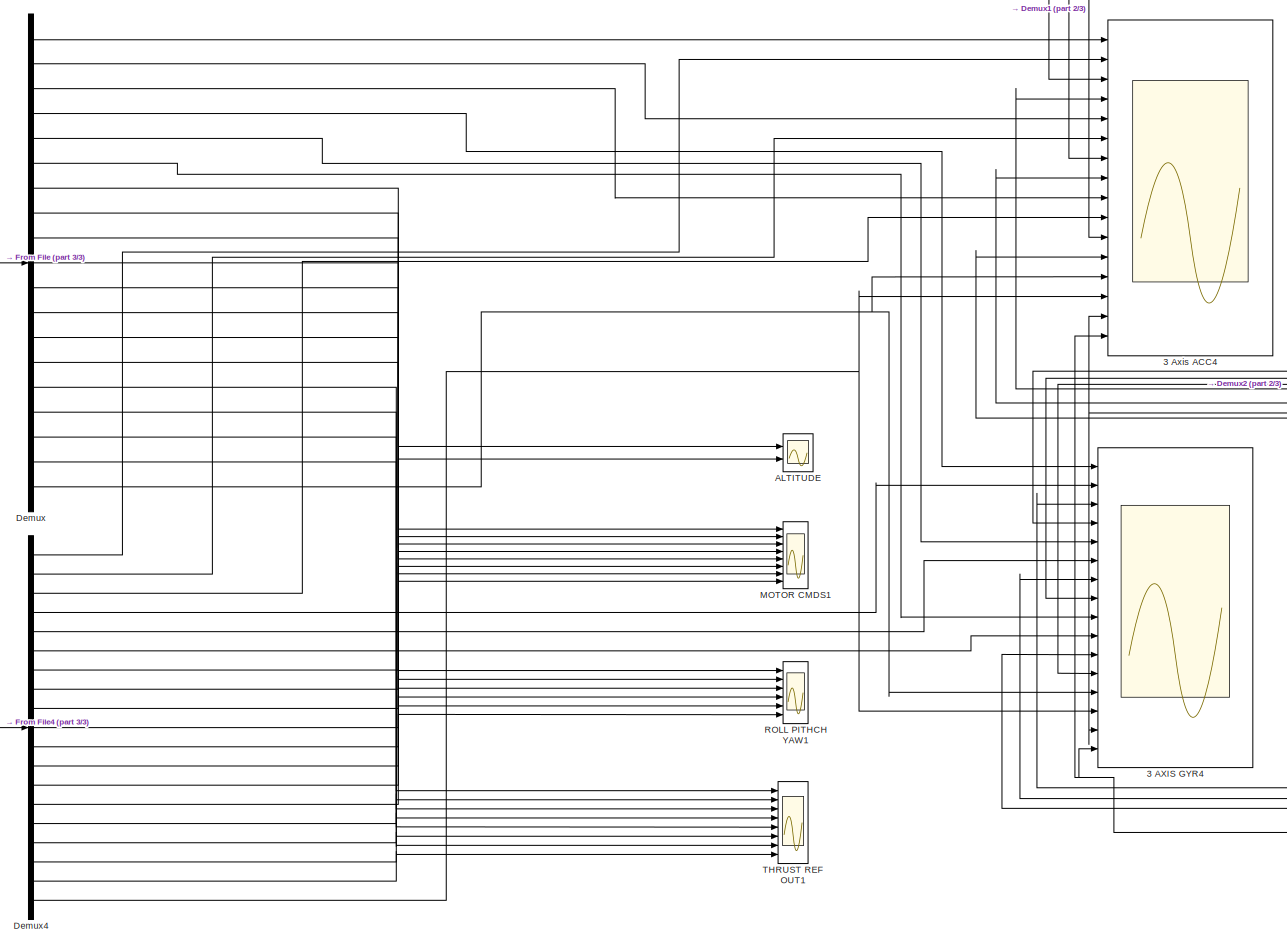
[diagram: root canvas - part 1/3, center side, full height]
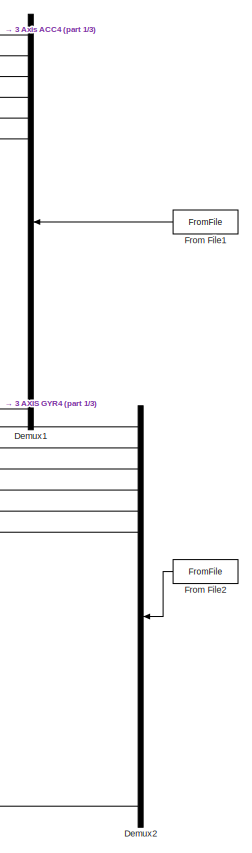
[diagram: root canvas - part 2/3, right side, full height]
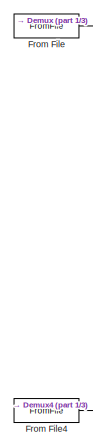
[diagram: root canvas - part 3/3, middle left region]
MODEL slx_49946ab4c58f
KIND model
CONFIG AbsTol = auto
CONFIG EnableMultiTasking = off
CONFIG FixedStep = auto
CONFIG MaxStep = auto
CONFIG MinStep = auto
CONFIG RelTol = 1e-3
CONFIG SampleTimeConstraint = Unconstrained
CONFIG Solver = VariableStepAuto
CONFIG SolverName = VariableStepAuto
CONFIG StartTime = 0.0
CONFIG StopTime = 60
BLOCK [Scope] 3 AXIS GYR4
  Floating = off
  NumInputPorts = 16
  Ports = [16]
  ScopeSpecificationString = Simulink.scopes.TimeScopeBlockCfg('CurrentConfiguration', extmgr.ConfigurationSet(extmgr.Configuration('Core','General UI',true),extmgr.Configuration('Core','Source UI',true),extmgr.Configuration('Sources','WiredSimulink',true,'DataLoggingVariableName','ScopeData2'),extmgr.Configuration('Visuals','Time Domain',true,'PlotType','Line','SerializedDisplays',{struct('MinYLimReal','-12.5','MaxYLimReal',...<+2125ch>
BLOCK [Scope] 3 Axis ACC4
  Floating = off
  NumInputPorts = 16
  Ports = [16]
  ScopeSpecificationString = Simulink.scopes.TimeScopeBlockCfg('CurrentConfiguration', extmgr.ConfigurationSet(extmgr.Configuration('Core','General UI',true),extmgr.Configuration('Core','Source UI',true),extmgr.Configuration('Sources','WiredSimulink',true),extmgr.Configuration('Visuals','Time Domain',true,'PlotType','Line','SerializedDisplays',{struct('MinYLimReal','-23.34015','MaxYLimReal','15.47004','YLabelReal','','MinYLim...<+2323ch>
BLOCK [Scope] ALTITUDE
  Floating = off
  NumInputPorts = 2
  Ports = [2]
  ScopeSpecificationString = Simulink.scopes.TimeScopeBlockCfg('CurrentConfiguration', extmgr.ConfigurationSet(extmgr.Configuration('Core','General UI',true),extmgr.Configuration('Core','Source UI',true),extmgr.Configuration('Sources','WiredSimulink',true,'DataLoggingVariableName','ScopeData1'),extmgr.Configuration('Visuals','Time Domain',true,'SerializedDisplays',{struct('MinYLimReal','-1.61246','MaxYLimReal','18.91216','YLa...<+1381ch>
BLOCK [Demux] Demux
  Outputs = 19
  Ports = [1, 19]
BLOCK [Demux] Demux1
  Outputs = 19
  Ports = [1, 19]
BLOCK [Demux] Demux2
  Outputs = 19
  Ports = [1, 19]
BLOCK [Demux] Demux4
  Outputs = 19
  Ports = [1, 19]
BLOCK [FromFile] From File
  FileName = <userpath>\Documents\MATLAB\Master_Thesis\model\parrotMinidroneWaypointFollower\FaultyDataGyr_MATFILES\1_Offset\Faulty_Simulation_wp_2_Fault_Category_1_count_3.mat
  SampleTime = 0.1
BLOCK [FromFile] From File1
  FileName = <userpath>\Documents\MATLAB\Master_Thesis\model\parrotMinidroneWaypointFollower\FaultyDataAcc_MATFILES\2_Stuck_at\Faulty_Simulation_wp_9_Fault_Category_2_count_1.mat
  SampleTime = 0.01
BLOCK [FromFile] From File2
  FileName = <userpath>\Documents\MATLAB\Master_Thesis\model\parrotMinidroneWaypointFollower\FaultyDataAcc_MATFILES\2_Stuck_at\Faulty_Simulation_wp_14_Fault_Category_2_count_3.mat
  SampleTime = 0.01
BLOCK [FromFile] From File4
  FileName = <userpath>\Documents\MATLAB\Master_Thesis\model\parrotMinidroneWaypointFollower\FaultyDataGyr_MATFILES\1_Offset\Faulty_Simulation_wp_20_Fault_Category_1_count_3.mat
  SampleTime = 0.1
BLOCK [Scope] MOTOR CMDS1
  Floating = off
  NumInputPorts = 8
  Ports = [8]
  ScopeSpecificationString = Simulink.scopes.TimeScopeBlockCfg('CurrentConfiguration', extmgr.ConfigurationSet(extmgr.Configuration('Core','General UI',true),extmgr.Configuration('Core','Source UI',true),extmgr.Configuration('Sources','WiredSimulink',true,'DataLoggingVariableName','ScopeData3'),extmgr.Configuration('Visuals','Time Domain',true,'SerializedDisplays',{struct('MinYLimReal','-429.47679','MaxYLimReal','429.48909','...<+1458ch>
BLOCK [Scope] ROLL PITHCH YAW1
  Floating = off
  NumInputPorts = 6
  Ports = [6]
  ScopeSpecificationString = Simulink.scopes.TimeScopeBlockCfg('CurrentConfiguration', extmgr.ConfigurationSet(extmgr.Configuration('Core','General UI',true),extmgr.Configuration('Core','Source UI',true),extmgr.Configuration('Sources','WiredSimulink',true,'DataLoggingVariableName','ScopeData4'),extmgr.Configuration('Visuals','Time Domain',true,'SerializedDisplays',{struct('MinYLimReal','-0.43549','MaxYLimReal','0.29225','YLab...<+1593ch>
BLOCK [Scope] THRUST REF OUT1
  Floating = off
  NumInputPorts = 8
  Ports = [8]
  ScopeSpecificationString = Simulink.scopes.TimeScopeBlockCfg('CurrentConfiguration', extmgr.ConfigurationSet(extmgr.Configuration('Core','General UI',true),extmgr.Configuration('Core','Source UI',true),extmgr.Configuration('Sources','WiredSimulink',true,'DataLoggingVariableName','ScopeData5'),extmgr.Configuration('Visuals','Time Domain',true,'SerializedDisplays',{struct('MinYLimReal','-0.29022','MaxYLimReal','0.36732','YLab...<+1448ch>
LINE Demux1:1 -> 3 Axis ACC4:3
NET Demux1:19 -> 3 AXIS GYR4:15, 3 Axis ACC4:15
LINE Demux1:2 -> 3 Axis ACC4:7
LINE Demux1:3 -> 3 Axis ACC4:11
LINE Demux1:4 -> 3 AXIS GYR4:3
LINE Demux1:5 -> 3 AXIS GYR4:7
LINE Demux1:6 -> 3 AXIS GYR4:11
LINE Demux2:1 -> 3 Axis ACC4:4
NET Demux2:19 -> 3 AXIS GYR4:16, 3 Axis ACC4:16
LINE Demux2:2 -> 3 Axis ACC4:8
LINE Demux2:3 -> 3 Axis ACC4:12
LINE Demux2:4 -> 3 AXIS GYR4:4
LINE Demux2:5 -> 3 AXIS GYR4:8
LINE Demux2:6 -> 3 AXIS GYR4:12
LINE Demux4:1 -> 3 Axis ACC4:2
LINE Demux4:10 -> MOTOR CMDS1:6
LINE Demux4:11 -> MOTOR CMDS1:8
LINE Demux4:12 -> ROLL PITHCH YAW1:2
LINE Demux4:13 -> ROLL PITHCH YAW1:4
LINE Demux4:14 -> ROLL PITHCH YAW1:6
LINE Demux4:15 -> THRUST REF OUT1:2
LINE Demux4:16 -> THRUST REF OUT1:4
LINE Demux4:17 -> THRUST REF OUT1:6
LINE Demux4:18 -> THRUST REF OUT1:8
NET Demux4:19 -> 3 AXIS GYR4:14, 3 Axis ACC4:14
LINE Demux4:2 -> 3 Axis ACC4:6
LINE Demux4:3 -> 3 Axis ACC4:10
LINE Demux4:4 -> 3 AXIS GYR4:2
LINE Demux4:5 -> 3 AXIS GYR4:6
LINE Demux4:6 -> 3 AXIS GYR4:10
LINE Demux4:7 -> ALTITUDE:2
LINE Demux4:8 -> MOTOR CMDS1:2
LINE Demux4:9 -> MOTOR CMDS1:4
LINE Demux:1 -> 3 Axis ACC4:1
LINE Demux:10 -> MOTOR CMDS1:5
LINE Demux:11 -> MOTOR CMDS1:7
LINE Demux:12 -> ROLL PITHCH YAW1:1
LINE Demux:13 -> ROLL PITHCH YAW1:3
LINE Demux:14 -> ROLL PITHCH YAW1:5
LINE Demux:15 -> THRUST REF OUT1:1
LINE Demux:16 -> THRUST REF OUT1:3
LINE Demux:17 -> THRUST REF OUT1:5
LINE Demux:18 -> THRUST REF OUT1:7
NET Demux:19 -> 3 AXIS GYR4:13, 3 Axis ACC4:13
LINE Demux:2 -> 3 Axis ACC4:5
LINE Demux:3 -> 3 Axis ACC4:9
LINE Demux:4 -> 3 AXIS GYR4:1
LINE Demux:5 -> 3 AXIS GYR4:5
LINE Demux:6 -> 3 AXIS GYR4:9
LINE Demux:7 -> ALTITUDE:1
LINE Demux:8 -> MOTOR CMDS1:1
LINE Demux:9 -> MOTOR CMDS1:3
LINE From File1:1 -> Demux1:1
LINE From File2:1 -> Demux2:1
LINE From File4:1 -> Demux4:1
LINE From File:1 -> Demux:1
note: NET lines group one-source signal fan-out (src -> all destinations, sorted); 1:1 wires keep LINE
